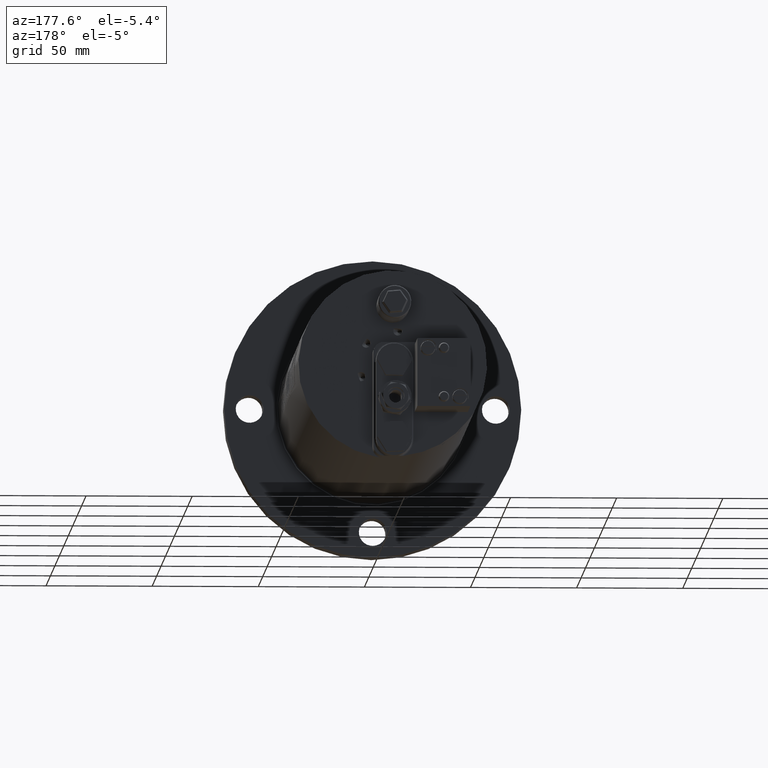
[diagram: clean part render]
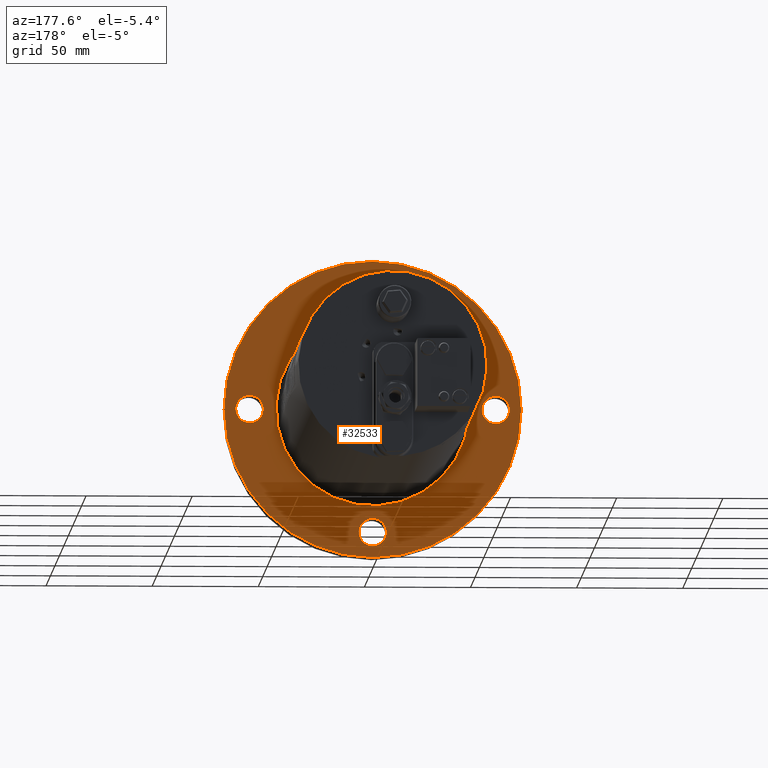
[diagram: same view with one face highlighted and labeled with its STEP entity id]
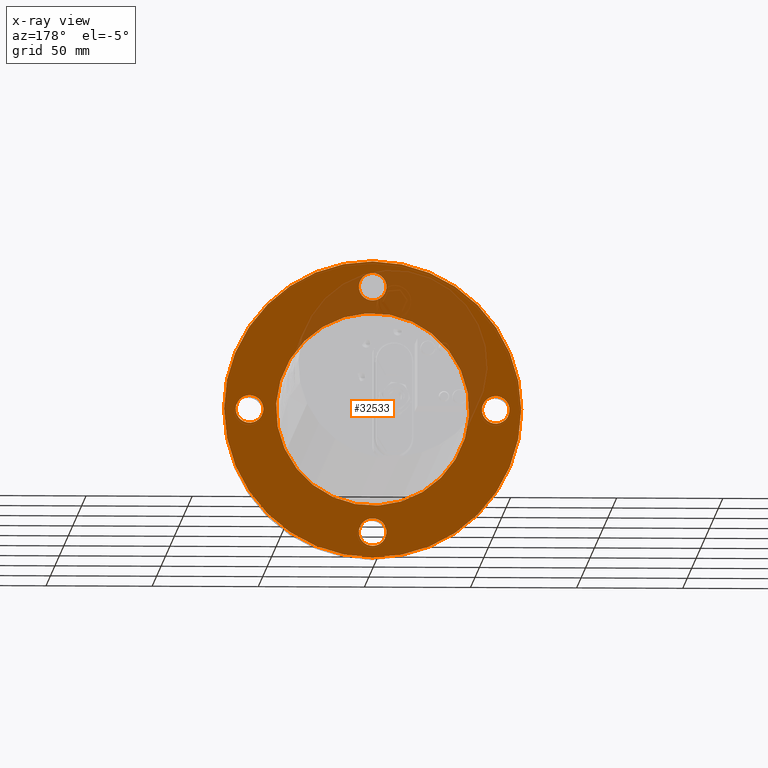
[diagram: x-ray of the same camera — body ghosted, the highlighted face saturated]
A machine part, auxiliary view. The second image highlights one B-rep face of the part: STEP entity #32533.
The next image is the same camera in x-ray: the body ghosted, the highlighted face saturated — about 22% of this face is hidden behind the body in this view.
In plain terms, the highlighted planar face has unit normal (0, 1, -0).
Its self-contained STEP definition (entity closure, byte-faithful):
#28 = DIRECTION ( 'NONE',  ( 4.382831749361561200E-016, 1.000000000000000000, -4.037036577267773700E-017 ) ) ;
#38 = ORIENTED_EDGE ( 'NONE', *, *, #29763, .F. ) ;
#276 = ORIENTED_EDGE ( 'NONE', *, *, #32701, .F. ) ;
#677 = DIRECTION ( 'NONE',  ( 4.382831749361561200E-016, 1.000000000000000000, -4.037036577267773700E-017 ) ) ;
#687 = DIRECTION ( 'NONE',  ( 4.382831749361561200E-016, 1.000000000000000000, -4.037036577267773700E-017 ) ) ;
#939 = EDGE_LOOP ( 'NONE', ( #42758, #5979 ) ) ;
#1581 = AXIS2_PLACEMENT_3D ( 'NONE', #29297, #13017, #42632 ) ;
#2297 = AXIS2_PLACEMENT_3D ( 'NONE', #27055, #33979, #20889 ) ;
#2723 = VERTEX_POINT ( 'NONE', #24792 ) ;
#2737 = CIRCLE ( 'NONE', #36479, 45.50000000000000700 ) ;
#2771 = CARTESIAN_POINT ( 'NONE',  ( 58.00000000000052600, -7.000000000000039100, -4.373434277989239200E-013 ) ) ;
#2855 = CIRCLE ( 'NONE', #16078, 70.00000000000001400 ) ;
#2976 = CARTESIAN_POINT ( 'NONE',  ( 49.49747468305922400, -7.000000000000031100, 49.49747468305796600 ) ) ;
#3341 = CARTESIAN_POINT ( 'NONE',  ( 7.360797652652927500E-013, -7.000000000000011500, 57.99999999999999300 ) ) ;
#3419 = CARTESIAN_POINT ( 'NONE',  ( -32.17335854398763200, -7.000000000000000900, -32.17335854398767500 ) ) ;
#3567 = DIRECTION ( 'NONE',  ( -0.7071067811865533500, 2.668805347656630100E-016, -0.7071067811865418000 ) ) ;
#3976 = DIRECTION ( 'NONE',  ( -0.7071067811865530100, 2.668805347656627200E-016, -0.7071067811865419100 ) ) ;
#3983 = VERTEX_POINT ( 'NONE', #33921 ) ;
#4067 = DIRECTION ( 'NONE',  ( -4.382831749361561200E-016, -1.000000000000000000, 4.037036577267773700E-017 ) ) ;
#4236 = DIRECTION ( 'NONE',  ( 4.382831749361561200E-016, 1.000000000000000000, -4.037036577267775600E-017 ) ) ;
#4355 = AXIS2_PLACEMENT_3D ( 'NONE', #37093, #677, #3976 ) ;
#4960 = VERTEX_POINT ( 'NONE', #3419 ) ;
#5979 = ORIENTED_EDGE ( 'NONE', *, *, #27398, .F. ) ;
#6462 = DIRECTION ( 'NONE',  ( 4.382831749361561200E-016, 1.000000000000000000, -4.037036577267773700E-017 ) ) ;
#7011 = CARTESIAN_POINT ( 'NONE',  ( 2.919905554152300800E-013, -7.000000000000015100, -57.99999999999999300 ) ) ;
#8156 = EDGE_LOOP ( 'NONE', ( #16662, #18785 ) ) ;
#9276 = CARTESIAN_POINT ( 'NONE',  ( 62.59619407771310800, -7.000000000000040900, 4.596194077712090700 ) ) ;
#9716 = CARTESIAN_POINT ( 'NONE',  ( -49.49747468305819400, -6.999999999999991100, -49.49747468305795900 ) ) ;
#9721 = EDGE_CURVE ( 'NONE', #29501, #12165, #2855, .T. ) ;
#10848 = EDGE_CURVE ( 'NONE', #3983, #15708, #11977, .T. ) ;
#11137 = FACE_BOUND ( 'NONE', #939, .T. ) ;
#11659 = EDGE_LOOP ( 'NONE', ( #18782, #30542 ) ) ;
#11977 = CIRCLE ( 'NONE', #29874, 6.499999999999998200 ) ;
#12165 = VERTEX_POINT ( 'NONE', #9716 ) ;
#12273 = CARTESIAN_POINT ( 'NONE',  ( 5.184179920896229100E-013, -7.000000000000013300, -5.968155104952717500E-016 ) ) ;
#12564 = CARTESIAN_POINT ( 'NONE',  ( -4.596194077712301200, -7.000000000000013300, -62.59619407771251100 ) ) ;
#12582 = CIRCLE ( 'NONE', #18380, 45.50000000000000700 ) ;
#12638 = ORIENTED_EDGE ( 'NONE', *, *, #29498, .F. ) ;
#13017 = DIRECTION ( 'NONE',  ( 4.382831749361561200E-016, 1.000000000000000000, -4.037036577267773700E-017 ) ) ;
#13231 = FACE_BOUND ( 'NONE', #11659, .T. ) ;
#13433 = CARTESIAN_POINT ( 'NONE',  ( 32.17335854398867000, -7.000000000000025800, 32.17335854398768200 ) ) ;
#14179 = VERTEX_POINT ( 'NONE', #36388 ) ;
#14547 = CARTESIAN_POINT ( 'NONE',  ( -4.596194077711858000, -7.000000000000009800, 53.40380592228747500 ) ) ;
#15353 = DIRECTION ( 'NONE',  ( 0.7071067811865527900, -2.849902853390468200E-016, 0.7071067811865422400 ) ) ;
#15708 = VERTEX_POINT ( 'NONE', #9276 ) ;
#16078 = AXIS2_PLACEMENT_3D ( 'NONE', #28147, #28721, #15353 ) ;
#16161 = AXIS2_PLACEMENT_3D ( 'NONE', #36492, #36057, #42745 ) ;
#16662 = ORIENTED_EDGE ( 'NONE', *, *, #41281, .F. ) ;
#17133 = CIRCLE ( 'NONE', #21282, 6.499999999999991100 ) ;
#17405 = VERTEX_POINT ( 'NONE', #13433 ) ;
#17850 = ORIENTED_EDGE ( 'NONE', *, *, #19118, .F. ) ;
#17934 = CIRCLE ( 'NONE', #21147, 6.500000000000001800 ) ;
#18124 = EDGE_LOOP ( 'NONE', ( #276, #38 ) ) ;
#18321 = AXIS2_PLACEMENT_3D ( 'NONE', #2771, #39497, #29516 ) ;
#18380 = AXIS2_PLACEMENT_3D ( 'NONE', #33607, #4067, #30270 ) ;
#18782 = ORIENTED_EDGE ( 'NONE', *, *, #36653, .T. ) ;
#18785 = ORIENTED_EDGE ( 'NONE', *, *, #10848, .F. ) ;
#19118 = EDGE_CURVE ( 'NONE', #23573, #19616, #17133, .T. ) ;
#19616 = VERTEX_POINT ( 'NONE', #36077 ) ;
#19747 = EDGE_CURVE ( 'NONE', #17405, #4960, #2737, .T. ) ;
#19858 = CARTESIAN_POINT ( 'NONE',  ( -57.99999999999949600, -6.999999999999987600, 8.220658157602381300E-013 ) ) ;
#20889 = DIRECTION ( 'NONE',  ( 0.7071067811865527900, -2.849902853390468200E-016, 0.7071067811865422400 ) ) ;
#21096 = PLANE ( 'NONE',  #32870 ) ;
#21147 = AXIS2_PLACEMENT_3D ( 'NONE', #19858, #687, #23446 ) ;
#21282 = AXIS2_PLACEMENT_3D ( 'NONE', #7011, #6462, #3567 ) ;
#22279 = EDGE_CURVE ( 'NONE', #12165, #29501, #28362, .T. ) ;
#23446 = DIRECTION ( 'NONE',  ( -0.7071067811865533500, 2.668805347656625700E-016, -0.7071067811865418000 ) ) ;
#23573 = VERTEX_POINT ( 'NONE', #12564 ) ;
#24042 = FACE_BOUND ( 'NONE', #18124, .T. ) ;
#24792 = CARTESIAN_POINT ( 'NONE',  ( 4.596194077713327000, -7.000000000000013300, 62.59619407771252500 ) ) ;
#25389 = DIRECTION ( 'NONE',  ( -0.7071067811865527900, 2.859434301060670700E-016, -0.7071067811865422400 ) ) ;
#25679 = AXIS2_PLACEMENT_3D ( 'NONE', #3341, #28, #29117 ) ;
#26200 = CARTESIAN_POINT ( 'NONE',  ( 58.00000000000052600, -7.000000000000039100, -4.373434277989239200E-013 ) ) ;
#27055 = CARTESIAN_POINT ( 'NONE',  ( 5.184179920896229100E-013, -7.000000000000011500, -5.968155104952719400E-016 ) ) ;
#27398 = EDGE_CURVE ( 'NONE', #14179, #31404, #17934, .T. ) ;
#28147 = CARTESIAN_POINT ( 'NONE',  ( 5.184179920896229100E-013, -7.000000000000011500, -5.968155104952719400E-016 ) ) ;
#28329 = EDGE_LOOP ( 'NONE', ( #12638, #17850 ) ) ;
#28362 = CIRCLE ( 'NONE', #2297, 70.00000000000001400 ) ;
#28721 = DIRECTION ( 'NONE',  ( -4.382831749361561200E-016, -1.000000000000000000, 4.037036577267773700E-017 ) ) ;
#29065 = CIRCLE ( 'NONE', #16161, 6.500000000000001800 ) ;
#29117 = DIRECTION ( 'NONE',  ( -0.7071067811865530100, 2.668805347656627200E-016, -0.7071067811865419100 ) ) ;
#29297 = CARTESIAN_POINT ( 'NONE',  ( 2.919905554152300800E-013, -7.000000000000015100, -57.99999999999999300 ) ) ;
#29498 = EDGE_CURVE ( 'NONE', #19616, #23573, #33683, .T. ) ;
#29501 = VERTEX_POINT ( 'NONE', #2976 ) ;
#29516 = DIRECTION ( 'NONE',  ( -0.7071067811865527900, 2.668805347656627200E-016, -0.7071067811865422400 ) ) ;
#29522 = ORIENTED_EDGE ( 'NONE', *, *, #22279, .F. ) ;
#29763 = EDGE_CURVE ( 'NONE', #30038, #2723, #34173, .T. ) ;
#29874 = AXIS2_PLACEMENT_3D ( 'NONE', #26200, #35996, #32109 ) ;
#30038 = VERTEX_POINT ( 'NONE', #14547 ) ;
#30270 = DIRECTION ( 'NONE',  ( -0.7071067811865527900, 2.859434301060670700E-016, -0.7071067811865422400 ) ) ;
#30542 = ORIENTED_EDGE ( 'NONE', *, *, #19747, .T. ) ;
#31404 = VERTEX_POINT ( 'NONE', #37995 ) ;
#32109 = DIRECTION ( 'NONE',  ( -0.7071067811865527900, 2.668805347656627200E-016, -0.7071067811865422400 ) ) ;
#32155 = DIRECTION ( 'NONE',  ( -4.382831749361561200E-016, -1.000000000000000000, 4.037036577267773700E-017 ) ) ;
#32457 = ORIENTED_EDGE ( 'NONE', *, *, #9721, .F. ) ;
#32533 = ADVANCED_FACE ( 'NONE', ( #13231, #40018, #11137, #24042, #34892, #42117 ), #21096, .T. ) ;
#32701 = EDGE_CURVE ( 'NONE', #2723, #30038, #41610, .T. ) ;
#32870 = AXIS2_PLACEMENT_3D ( 'NONE', #40266, #4236, #33778 ) ;
#33607 = CARTESIAN_POINT ( 'NONE',  ( 5.184179920896229100E-013, -7.000000000000013300, -5.968155104952717500E-016 ) ) ;
#33683 = CIRCLE ( 'NONE', #1581, 6.499999999999991100 ) ;
#33778 = DIRECTION ( 'NONE',  ( -0.7071067811865529000, 2.813668456804866500E-016, -0.7071067811865422400 ) ) ;
#33921 = CARTESIAN_POINT ( 'NONE',  ( 53.40380592228792300, -7.000000000000037300, -4.596194077712957500 ) ) ;
#33979 = DIRECTION ( 'NONE',  ( -4.382831749361561200E-016, -1.000000000000000000, 4.037036577267773700E-017 ) ) ;
#34080 = CIRCLE ( 'NONE', #18321, 6.499999999999998200 ) ;
#34173 = CIRCLE ( 'NONE', #4355, 6.499999999999998200 ) ;
#34892 = FACE_BOUND ( 'NONE', #8156, .T. ) ;
#35996 = DIRECTION ( 'NONE',  ( 4.382831749361561200E-016, 1.000000000000000000, -4.037036577267773700E-017 ) ) ;
#36057 = DIRECTION ( 'NONE',  ( 4.382831749361561200E-016, 1.000000000000000000, -4.037036577267773700E-017 ) ) ;
#36077 = CARTESIAN_POINT ( 'NONE',  ( 4.596194077712882000, -7.000000000000016900, -53.40380592228747500 ) ) ;
#36388 = CARTESIAN_POINT ( 'NONE',  ( -62.59619407771207700, -6.999999999999985800, -4.596194077711705200 ) ) ;
#36468 = EDGE_CURVE ( 'NONE', #31404, #14179, #29065, .T. ) ;
#36479 = AXIS2_PLACEMENT_3D ( 'NONE', #12273, #32155, #25389 ) ;
#36492 = CARTESIAN_POINT ( 'NONE',  ( -57.99999999999949600, -6.999999999999987600, 8.220658157602381300E-013 ) ) ;
#36653 = EDGE_CURVE ( 'NONE', #4960, #17405, #12582, .T. ) ;
#37093 = CARTESIAN_POINT ( 'NONE',  ( 7.360797652652927500E-013, -7.000000000000011500, 57.99999999999999300 ) ) ;
#37442 = EDGE_LOOP ( 'NONE', ( #32457, #29522 ) ) ;
#37995 = CARTESIAN_POINT ( 'NONE',  ( -53.40380592228689900, -6.999999999999988500, 4.596194077713342100 ) ) ;
#39497 = DIRECTION ( 'NONE',  ( 4.382831749361561200E-016, 1.000000000000000000, -4.037036577267773700E-017 ) ) ;
#40018 = FACE_BOUND ( 'NONE', #28329, .T. ) ;
#40266 = CARTESIAN_POINT ( 'NONE',  ( -49.49747468305744000, -6.999999999999988500, 49.49747468305870500 ) ) ;
#41281 = EDGE_CURVE ( 'NONE', #15708, #3983, #34080, .T. ) ;
#41610 = CIRCLE ( 'NONE', #25679, 6.499999999999998200 ) ;
#42117 = FACE_OUTER_BOUND ( 'NONE', #37442, .T. ) ;
#42632 = DIRECTION ( 'NONE',  ( -0.7071067811865533500, 2.668805347656630100E-016, -0.7071067811865418000 ) ) ;
#42745 = DIRECTION ( 'NONE',  ( -0.7071067811865533500, 2.668805347656625700E-016, -0.7071067811865418000 ) ) ;
#42758 = ORIENTED_EDGE ( 'NONE', *, *, #36468, .F. ) ;